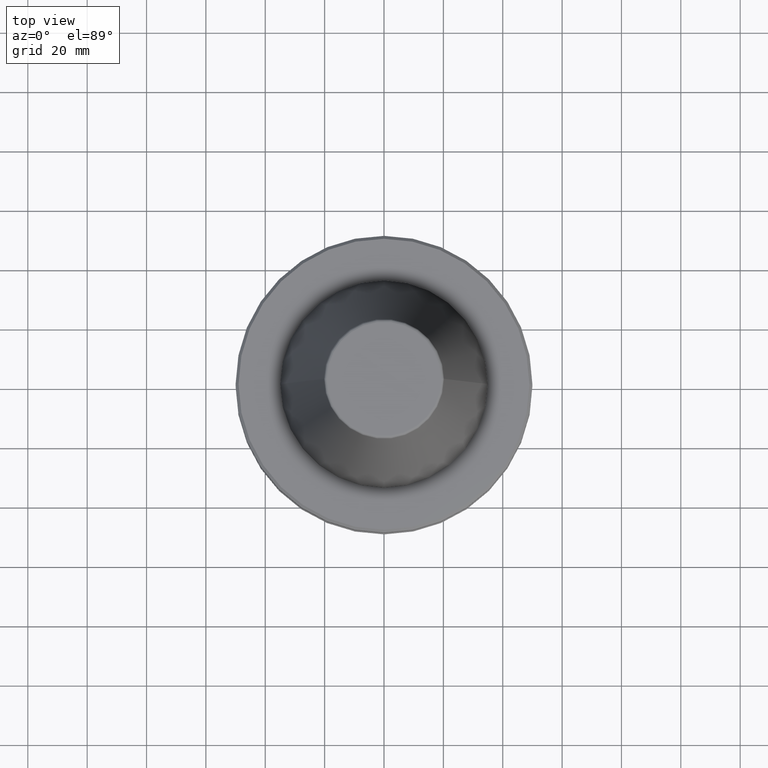
[diagram: clean part render]
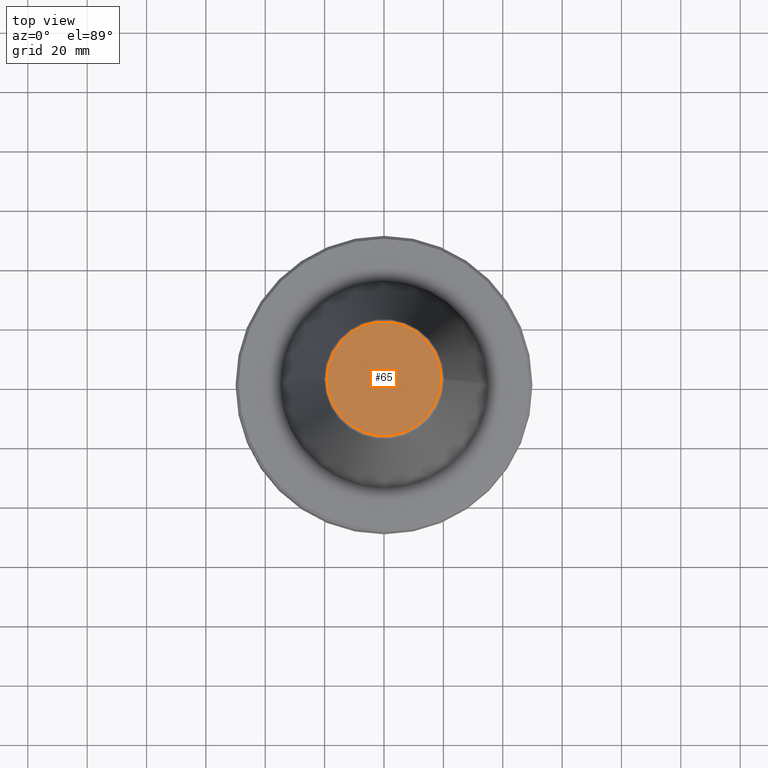
[diagram: same view with one face highlighted and labeled with its STEP entity id]
A machine part, top view. The second image highlights one B-rep face of the part: STEP entity #65.
In plain terms, the highlighted planar face has unit normal (0, 0, -1).
Its self-contained STEP definition (entity closure, byte-faithful):
#44 = PLANE ( 'NONE',  #222 ) ;
#65 = ADVANCED_FACE ( 'NONE', ( #864 ), #44, .F. ) ;
#129 = CARTESIAN_POINT ( 'NONE',  ( 19.21428366486954800, 0.0000000000000000000, 101.7999999999989700 ) ) ;
#171 = DIRECTION ( 'NONE',  ( -0.0000000000000000000, -0.0000000000000000000, 1.000000000000000000 ) ) ;
#222 = AXIS2_PLACEMENT_3D ( 'NONE', #600, #515, #1137 ) ;
#363 = DIRECTION ( 'NONE',  ( 1.000000000000000000, 0.0000000000000000000, 0.0000000000000000000 ) ) ;
#428 = ORIENTED_EDGE ( 'NONE', *, *, #1302, .T. ) ;
#515 = DIRECTION ( 'NONE',  ( 0.0000000000000000000, 0.0000000000000000000, -1.000000000000000000 ) ) ;
#540 = AXIS2_PLACEMENT_3D ( 'NONE', #1049, #171, #363 ) ;
#600 = CARTESIAN_POINT ( 'NONE',  ( 0.0000000000000000000, 19.21428366486954800, 101.7999999999989300 ) ) ;
#760 = VERTEX_POINT ( 'NONE', #1064 ) ;
#784 = CARTESIAN_POINT ( 'NONE',  ( 0.0000000000000000000, 0.0000000000000000000, 101.7999999999989700 ) ) ;
#861 = CIRCLE ( 'NONE', #1057, 19.21428366486954800 ) ;
#864 = FACE_OUTER_BOUND ( 'NONE', #1187, .T. ) ;
#901 = CIRCLE ( 'NONE', #540, 19.21428366486954800 ) ;
#912 = DIRECTION ( 'NONE',  ( -0.0000000000000000000, -0.0000000000000000000, 1.000000000000000000 ) ) ;
#987 = EDGE_CURVE ( 'NONE', #760, #1045, #901, .T. ) ;
#1045 = VERTEX_POINT ( 'NONE', #129 ) ;
#1049 = CARTESIAN_POINT ( 'NONE',  ( 0.0000000000000000000, 0.0000000000000000000, 101.7999999999989700 ) ) ;
#1057 = AXIS2_PLACEMENT_3D ( 'NONE', #784, #912, #1116 ) ;
#1064 = CARTESIAN_POINT ( 'NONE',  ( -19.21428366486954800, 2.413662506824897000E-015, 101.7999999999989700 ) ) ;
#1116 = DIRECTION ( 'NONE',  ( 1.000000000000000000, 0.0000000000000000000, 0.0000000000000000000 ) ) ;
#1137 = DIRECTION ( 'NONE',  ( -1.000000000000000000, 0.0000000000000000000, -0.0000000000000000000 ) ) ;
#1187 = EDGE_LOOP ( 'NONE', ( #428, #1197 ) ) ;
#1197 = ORIENTED_EDGE ( 'NONE', *, *, #987, .T. ) ;
#1302 = EDGE_CURVE ( 'NONE', #1045, #760, #861, .T. ) ;